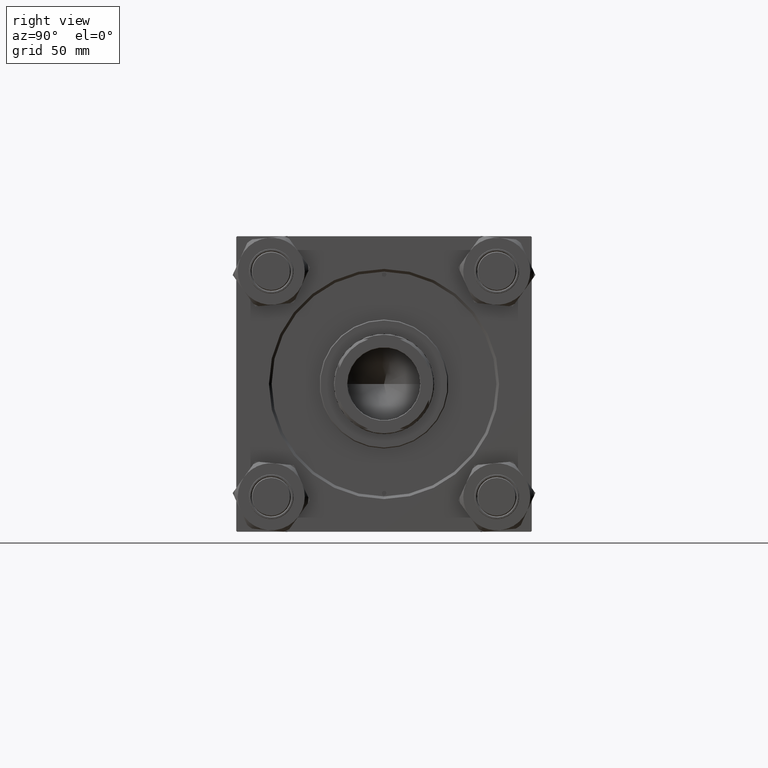
[diagram: clean part render]
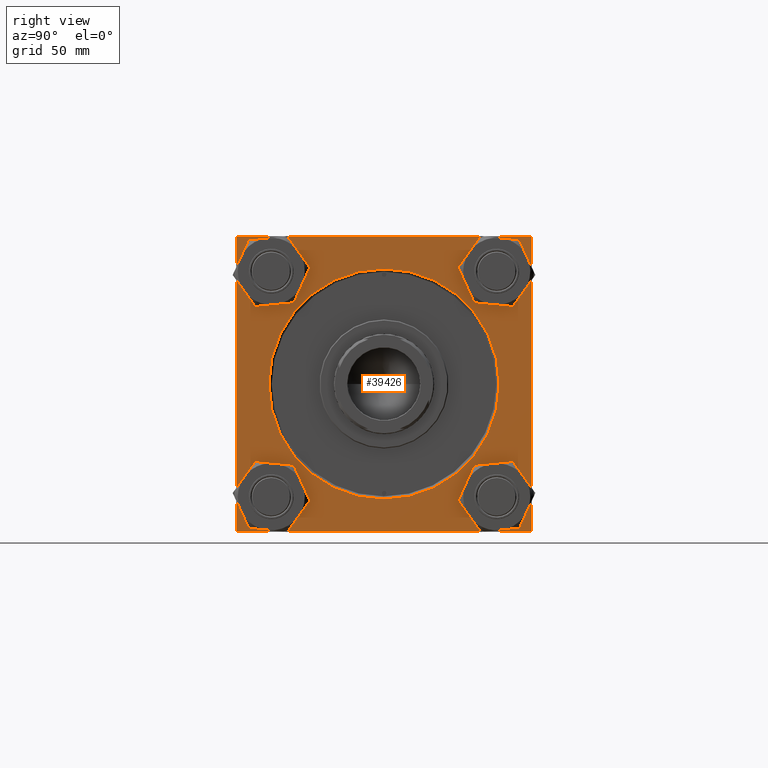
[diagram: same view with one face highlighted and labeled with its STEP entity id]
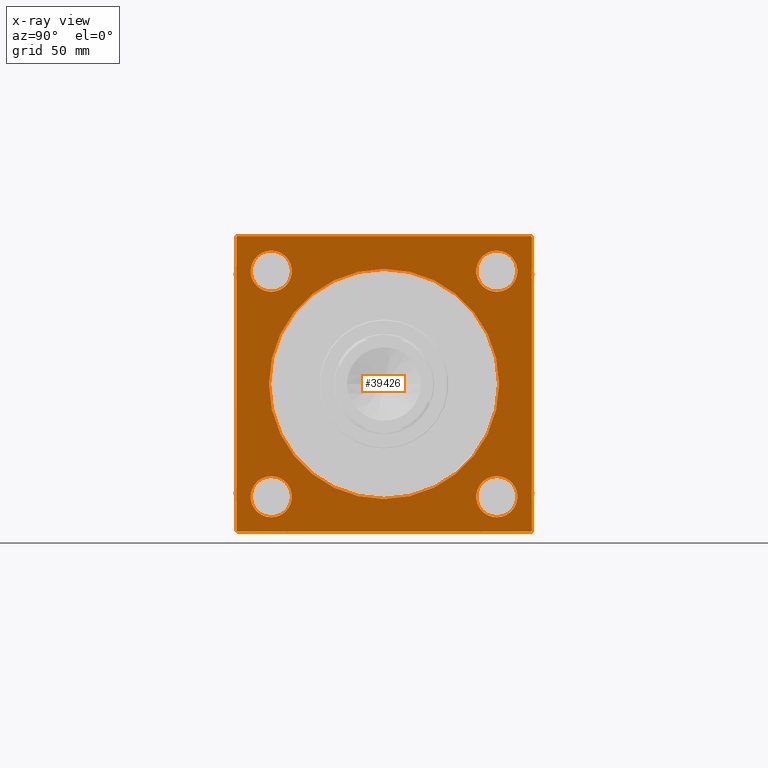
[diagram: x-ray of the same camera — body ghosted, the highlighted face saturated]
A machine part, right view. The second image highlights one B-rep face of the part: STEP entity #39426.
The next image is the same camera in x-ray: the body ghosted, the highlighted face saturated — about 0% of this face is hidden behind the body in this view.
In plain terms, the highlighted planar face has unit normal (-1, 0, 0).
Its self-contained STEP definition (entity closure, byte-faithful):
#248 = CARTESIAN_POINT ( 'NONE',  ( 217.0000000000000284, 82.50000000000001421, -82.00000000000005684 ) ) ;
#699 = CARTESIAN_POINT ( 'NONE',  ( 217.0000000000000284, -82.00000000000004263, -82.50000000000002842 ) ) ;
#807 = CIRCLE ( 'NONE', #40709, 64.24999999999997158 ) ;
#1118 = CIRCLE ( 'NONE', #8448, 11.49999999999995381 ) ;
#1198 = EDGE_CURVE ( 'NONE', #16869, #8510, #1429, .T. ) ;
#1429 = LINE ( 'NONE', #44530, #47943 ) ;
#2070 = CARTESIAN_POINT ( 'NONE',  ( 217.0000000000000284, -62.94999999999998153, -51.45000000000006679 ) ) ;
#2467 = DIRECTION ( 'NONE',  ( 0.000000000000000000, -1.000000000000000000, -1.682156097916904081E-16 ) ) ;
#2614 = VERTEX_POINT ( 'NONE', #9171 ) ;
#2688 = EDGE_CURVE ( 'NONE', #16869, #27064, #31886, .T. ) ;
#2982 = ORIENTED_EDGE ( 'NONE', *, *, #40405, .T. ) ;
#3163 = VERTEX_POINT ( 'NONE', #32822 ) ;
#3266 = VECTOR ( 'NONE', #46949, 1000.000000000000114 ) ;
#3548 = DIRECTION ( 'NONE',  ( 0.000000000000000000, 0.000000000000000000, 1.000000000000000000 ) ) ;
#3623 = VERTEX_POINT ( 'NONE', #7241 ) ;
#5255 = CARTESIAN_POINT ( 'NONE',  ( 217.0000000000000284, 82.50000000000001421, -82.00000000000005684 ) ) ;
#5269 = DIRECTION ( 'NONE',  ( 0.000000000000000000, -1.000000000000000000, 0.000000000000000000 ) ) ;
#5309 = CIRCLE ( 'NONE', #20747, 11.49999999999995381 ) ;
#5439 = DIRECTION ( 'NONE',  ( 0.000000000000000000, 0.000000000000000000, 1.000000000000000000 ) ) ;
#5677 = EDGE_CURVE ( 'NONE', #25008, #31239, #16361, .T. ) ;
#5747 = EDGE_CURVE ( 'NONE', #21102, #3163, #35938, .T. ) ;
#6404 = CARTESIAN_POINT ( 'NONE',  ( 217.0000000000000284, 62.95000000000000284, 74.44999999999996021 ) ) ;
#6475 = FACE_BOUND ( 'NONE', #10274, .T. ) ;
#7241 = CARTESIAN_POINT ( 'NONE',  ( 217.0000000000000284, -62.94999999999998153, -74.44999999999997442 ) ) ;
#8115 = EDGE_LOOP ( 'NONE', ( #16543, #45691 ) ) ;
#8448 = AXIS2_PLACEMENT_3D ( 'NONE', #12461, #28019, #43585 ) ;
#8510 = VERTEX_POINT ( 'NONE', #34720 ) ;
#9065 = AXIS2_PLACEMENT_3D ( 'NONE', #29689, #37585, #45508 ) ;
#9171 = CARTESIAN_POINT ( 'NONE',  ( 217.0000000000000284, 62.95000000000000284, -74.44999999999996021 ) ) ;
#9283 = DIRECTION ( 'NONE',  ( 0.000000000000000000, -1.682156097916903834E-16, -1.000000000000000000 ) ) ;
#9839 = VERTEX_POINT ( 'NONE', #27362 ) ;
#9935 = VECTOR ( 'NONE', #31831, 999.9999999999998863 ) ;
#10035 = VERTEX_POINT ( 'NONE', #39268 ) ;
#10208 = ORIENTED_EDGE ( 'NONE', *, *, #29591, .T. ) ;
#10274 = EDGE_LOOP ( 'NONE', ( #10382, #41018 ) ) ;
#10382 = ORIENTED_EDGE ( 'NONE', *, *, #12014, .T. ) ;
#11445 = DIRECTION ( 'NONE',  ( -1.000000000000000000, -0.000000000000000000, 0.000000000000000000 ) ) ;
#12014 = EDGE_CURVE ( 'NONE', #3623, #49532, #19042, .T. ) ;
#12211 = ORIENTED_EDGE ( 'NONE', *, *, #13244, .T. ) ;
#12461 = CARTESIAN_POINT ( 'NONE',  ( 217.0000000000000284, -62.94999999999998153, 62.95000000000001705 ) ) ;
#12669 = ORIENTED_EDGE ( 'NONE', *, *, #5677, .T. ) ;
#12737 = DIRECTION ( 'NONE',  ( 0.000000000000000000, 0.000000000000000000, 1.000000000000000000 ) ) ;
#13106 = LINE ( 'NONE', #28662, #50078 ) ;
#13244 = EDGE_CURVE ( 'NONE', #31239, #25008, #37847, .T. ) ;
#13809 = EDGE_CURVE ( 'NONE', #36748, #10035, #33097, .T. ) ;
#13822 = CARTESIAN_POINT ( 'NONE',  ( 217.0000000000000284, -82.49999999999997158, 81.99999999999991473 ) ) ;
#14129 = PLANE ( 'NONE',  #9065 ) ;
#14690 = ORIENTED_EDGE ( 'NONE', *, *, #2688, .T. ) ;
#14775 = CARTESIAN_POINT ( 'NONE',  ( 217.0000000000000284, 62.95000000000000284, -62.95000000000000284 ) ) ;
#15799 = EDGE_CURVE ( 'NONE', #2614, #29403, #19195, .T. ) ;
#16124 = EDGE_LOOP ( 'NONE', ( #23560, #32777 ) ) ;
#16361 = CIRCLE ( 'NONE', #44884, 11.49999999999995381 ) ;
#16515 = CARTESIAN_POINT ( 'NONE',  ( 217.0000000000000284, -62.94999999999998153, 62.95000000000001705 ) ) ;
#16543 = ORIENTED_EDGE ( 'NONE', *, *, #15799, .T. ) ;
#16869 = VERTEX_POINT ( 'NONE', #29531 ) ;
#17686 = ORIENTED_EDGE ( 'NONE', *, *, #28429, .T. ) ;
#17818 = EDGE_CURVE ( 'NONE', #49532, #3623, #5309, .T. ) ;
#18553 = EDGE_LOOP ( 'NONE', ( #12211, #12669 ) ) ;
#19042 = CIRCLE ( 'NONE', #47552, 11.49999999999995381 ) ;
#19171 = LINE ( 'NONE', #34752, #33323 ) ;
#19195 = CIRCLE ( 'NONE', #28966, 11.49999999999995381 ) ;
#20292 = EDGE_CURVE ( 'NONE', #36685, #23115, #42033, .T. ) ;
#20433 = AXIS2_PLACEMENT_3D ( 'NONE', #16515, #28264, #36170 ) ;
#20578 = CARTESIAN_POINT ( 'NONE',  ( 217.0000000000000284, -62.94999999999998153, -62.95000000000001705 ) ) ;
#20747 = AXIS2_PLACEMENT_3D ( 'NONE', #22929, #28478, #27291 ) ;
#21102 = VERTEX_POINT ( 'NONE', #30096 ) ;
#21313 = LINE ( 'NONE', #699, #9935 ) ;
#22617 = CARTESIAN_POINT ( 'NONE',  ( 217.0000000000000284, 62.95000000000000284, 51.45000000000005258 ) ) ;
#22929 = CARTESIAN_POINT ( 'NONE',  ( 217.0000000000000284, -62.94999999999998153, -62.95000000000001705 ) ) ;
#23013 = DIRECTION ( 'NONE',  ( 0.000000000000000000, 0.000000000000000000, -1.000000000000000000 ) ) ;
#23115 = VERTEX_POINT ( 'NONE', #44913 ) ;
#23415 = EDGE_CURVE ( 'NONE', #29403, #2614, #42143, .T. ) ;
#23560 = ORIENTED_EDGE ( 'NONE', *, *, #44910, .T. ) ;
#23745 = DIRECTION ( 'NONE',  ( -1.000000000000000000, -0.000000000000000000, 0.000000000000000000 ) ) ;
#24540 = DIRECTION ( 'NONE',  ( -1.000000000000000000, -0.000000000000000000, 0.000000000000000000 ) ) ;
#25008 = VERTEX_POINT ( 'NONE', #6404 ) ;
#25365 = VECTOR ( 'NONE', #23013, 1000.000000000000000 ) ;
#25423 = DIRECTION ( 'NONE',  ( 0.000000000000000000, 0.000000000000000000, 1.000000000000000000 ) ) ;
#25503 = CARTESIAN_POINT ( 'NONE',  ( 217.0000000000000284, 0.000000000000000000, 0.000000000000000000 ) ) ;
#25602 = FACE_BOUND ( 'NONE', #32641, .T. ) ;
#26726 = ORIENTED_EDGE ( 'NONE', *, *, #38722, .F. ) ;
#26862 = CARTESIAN_POINT ( 'NONE',  ( 217.0000000000000284, 82.50000000000001421, 82.50000000000000000 ) ) ;
#27019 = DIRECTION ( 'NONE',  ( 0.000000000000000000, 0.000000000000000000, 1.000000000000000000 ) ) ;
#27064 = VERTEX_POINT ( 'NONE', #5255 ) ;
#27291 = DIRECTION ( 'NONE',  ( 0.000000000000000000, 0.000000000000000000, 1.000000000000000000 ) ) ;
#27362 = CARTESIAN_POINT ( 'NONE',  ( 217.0000000000000284, 82.50000000000001421, 82.00000000000002842 ) ) ;
#27465 = ORIENTED_EDGE ( 'NONE', *, *, #1198, .F. ) ;
#28019 = DIRECTION ( 'NONE',  ( -1.000000000000000000, -0.000000000000000000, 0.000000000000000000 ) ) ;
#28264 = DIRECTION ( 'NONE',  ( -1.000000000000000000, -0.000000000000000000, 0.000000000000000000 ) ) ;
#28293 = DIRECTION ( 'NONE',  ( -1.000000000000000000, -0.000000000000000000, 0.000000000000000000 ) ) ;
#28429 = EDGE_CURVE ( 'NONE', #9839, #36748, #19171, .T. ) ;
#28478 = DIRECTION ( 'NONE',  ( -1.000000000000000000, -0.000000000000000000, 0.000000000000000000 ) ) ;
#28662 = CARTESIAN_POINT ( 'NONE',  ( 217.0000000000000284, -82.49999999999997158, 82.49999999999997158 ) ) ;
#28966 = AXIS2_PLACEMENT_3D ( 'NONE', #14775, #30345, #27019 ) ;
#29145 = CARTESIAN_POINT ( 'NONE',  ( 217.0000000000000284, 62.95000000000000284, 62.95000000000000284 ) ) ;
#29148 = CARTESIAN_POINT ( 'NONE',  ( 217.0000000000000284, 0.000000000000000000, -64.24999999999997158 ) ) ;
#29390 = DIRECTION ( 'NONE',  ( -0.000000000000000000, -0.7071067811865573427, -0.7071067811865376918 ) ) ;
#29403 = VERTEX_POINT ( 'NONE', #44970 ) ;
#29531 = CARTESIAN_POINT ( 'NONE',  ( 217.0000000000000284, 82.00000000000004263, -82.50000000000002842 ) ) ;
#29591 = EDGE_CURVE ( 'NONE', #23115, #36685, #807, .T. ) ;
#29689 = CARTESIAN_POINT ( 'NONE',  ( 217.0000000000000284, 0.000000000000000000, 0.000000000000000000 ) ) ;
#30096 = CARTESIAN_POINT ( 'NONE',  ( 217.0000000000000284, -62.94999999999998153, 74.44999999999997442 ) ) ;
#30187 = VERTEX_POINT ( 'NONE', #45600 ) ;
#30345 = DIRECTION ( 'NONE',  ( -1.000000000000000000, -0.000000000000000000, 0.000000000000000000 ) ) ;
#30347 = DIRECTION ( 'NONE',  ( 0.000000000000000000, 0.000000000000000000, 1.000000000000000000 ) ) ;
#30658 = CARTESIAN_POINT ( 'NONE',  ( 217.0000000000000284, 82.00000000000004263, 82.50000000000000000 ) ) ;
#31239 = VERTEX_POINT ( 'NONE', #22617 ) ;
#31831 = DIRECTION ( 'NONE',  ( 0.000000000000000000, 0.7071067811865376918, -0.7071067811865574537 ) ) ;
#31886 = LINE ( 'NONE', #248, #3266 ) ;
#32150 = VECTOR ( 'NONE', #2467, 1000.000000000000000 ) ;
#32641 = EDGE_LOOP ( 'NONE', ( #37686, #10208 ) ) ;
#32777 = ORIENTED_EDGE ( 'NONE', *, *, #5747, .T. ) ;
#32822 = CARTESIAN_POINT ( 'NONE',  ( 217.0000000000000284, -62.94999999999998153, 51.45000000000006679 ) ) ;
#33097 = LINE ( 'NONE', #37163, #32150 ) ;
#33323 = VECTOR ( 'NONE', #45224, 1000.000000000000114 ) ;
#33682 = EDGE_CURVE ( 'NONE', #10035, #30187, #48796, .T. ) ;
#33773 = FACE_BOUND ( 'NONE', #16124, .T. ) ;
#34720 = CARTESIAN_POINT ( 'NONE',  ( 217.0000000000000284, -82.00000000000004263, -82.50000000000002842 ) ) ;
#34752 = CARTESIAN_POINT ( 'NONE',  ( 217.0000000000000284, 82.00000000000004263, 82.50000000000000000 ) ) ;
#35938 = CIRCLE ( 'NONE', #20433, 11.49999999999995381 ) ;
#36170 = DIRECTION ( 'NONE',  ( 0.000000000000000000, 0.000000000000000000, 1.000000000000000000 ) ) ;
#36439 = ORIENTED_EDGE ( 'NONE', *, *, #13809, .T. ) ;
#36685 = VERTEX_POINT ( 'NONE', #29148 ) ;
#36748 = VERTEX_POINT ( 'NONE', #30658 ) ;
#37086 = FACE_BOUND ( 'NONE', #8115, .T. ) ;
#37122 = EDGE_LOOP ( 'NONE', ( #49950, #2982, #27465, #14690, #26726, #17686, #36439, #43290 ) ) ;
#37163 = CARTESIAN_POINT ( 'NONE',  ( 217.0000000000000284, 82.50000000000001421, 82.50000000000000000 ) ) ;
#37585 = DIRECTION ( 'NONE',  ( -1.000000000000000000, -0.000000000000000000, 0.000000000000000000 ) ) ;
#37686 = ORIENTED_EDGE ( 'NONE', *, *, #20292, .T. ) ;
#37842 = FACE_BOUND ( 'NONE', #18553, .T. ) ;
#37847 = CIRCLE ( 'NONE', #45170, 11.49999999999995381 ) ;
#37975 = CARTESIAN_POINT ( 'NONE',  ( 217.0000000000000284, -82.50000000000000000, -82.00000000000005684 ) ) ;
#38722 = EDGE_CURVE ( 'NONE', #9839, #27064, #46758, .T. ) ;
#38755 = AXIS2_PLACEMENT_3D ( 'NONE', #25503, #11445, #30347 ) ;
#39268 = CARTESIAN_POINT ( 'NONE',  ( 217.0000000000000284, -81.99999999999990052, 82.49999999999997158 ) ) ;
#39426 = ADVANCED_FACE ( 'NONE', ( #6475, #37086, #37842, #33773, #25602, #41930 ), #14129, .F. ) ;
#39695 = AXIS2_PLACEMENT_3D ( 'NONE', #40020, #28293, #12737 ) ;
#40020 = CARTESIAN_POINT ( 'NONE',  ( 217.0000000000000284, 62.95000000000000284, -62.95000000000000284 ) ) ;
#40405 = EDGE_CURVE ( 'NONE', #43819, #8510, #21313, .T. ) ;
#40709 = AXIS2_PLACEMENT_3D ( 'NONE', #43661, #23745, #48247 ) ;
#40728 = DIRECTION ( 'NONE',  ( -1.000000000000000000, -0.000000000000000000, 0.000000000000000000 ) ) ;
#41018 = ORIENTED_EDGE ( 'NONE', *, *, #17818, .T. ) ;
#41930 = FACE_OUTER_BOUND ( 'NONE', #37122, .T. ) ;
#42033 = CIRCLE ( 'NONE', #38755, 64.24999999999997158 ) ;
#42143 = CIRCLE ( 'NONE', #39695, 11.49999999999995381 ) ;
#42304 = DIRECTION ( 'NONE',  ( -1.000000000000000000, -0.000000000000000000, 0.000000000000000000 ) ) ;
#43290 = ORIENTED_EDGE ( 'NONE', *, *, #33682, .T. ) ;
#43585 = DIRECTION ( 'NONE',  ( 0.000000000000000000, 0.000000000000000000, 1.000000000000000000 ) ) ;
#43661 = CARTESIAN_POINT ( 'NONE',  ( 217.0000000000000284, 0.000000000000000000, 0.000000000000000000 ) ) ;
#43819 = VERTEX_POINT ( 'NONE', #37975 ) ;
#44530 = CARTESIAN_POINT ( 'NONE',  ( 217.0000000000000284, 82.50000000000001421, -82.50000000000002842 ) ) ;
#44884 = AXIS2_PLACEMENT_3D ( 'NONE', #46148, #42304, #3548 ) ;
#44910 = EDGE_CURVE ( 'NONE', #3163, #21102, #1118, .T. ) ;
#44913 = CARTESIAN_POINT ( 'NONE',  ( 217.0000000000000284, 7.868355684521741158E-15, 64.24999999999997158 ) ) ;
#44970 = CARTESIAN_POINT ( 'NONE',  ( 217.0000000000000284, 62.95000000000000284, -51.45000000000005258 ) ) ;
#45170 = AXIS2_PLACEMENT_3D ( 'NONE', #29145, #24540, #5439 ) ;
#45224 = DIRECTION ( 'NONE',  ( 0.000000000000000000, -0.7071067811865474617, 0.7071067811865474617 ) ) ;
#45508 = DIRECTION ( 'NONE',  ( 0.000000000000000000, 0.000000000000000000, 1.000000000000000000 ) ) ;
#45600 = CARTESIAN_POINT ( 'NONE',  ( 217.0000000000000284, -82.49999999999997158, 81.99999999999991473 ) ) ;
#45691 = ORIENTED_EDGE ( 'NONE', *, *, #23415, .T. ) ;
#46148 = CARTESIAN_POINT ( 'NONE',  ( 217.0000000000000284, 62.95000000000000284, 62.95000000000000284 ) ) ;
#46475 = VECTOR ( 'NONE', #29390, 1000.000000000000114 ) ;
#46758 = LINE ( 'NONE', #26862, #25365 ) ;
#46949 = DIRECTION ( 'NONE',  ( -0.000000000000000000, 0.7071067811865474617, 0.7071067811865474617 ) ) ;
#47174 = EDGE_CURVE ( 'NONE', #30187, #43819, #13106, .T. ) ;
#47552 = AXIS2_PLACEMENT_3D ( 'NONE', #20578, #40728, #25423 ) ;
#47943 = VECTOR ( 'NONE', #5269, 1000.000000000000000 ) ;
#48247 = DIRECTION ( 'NONE',  ( 0.000000000000000000, 0.000000000000000000, 1.000000000000000000 ) ) ;
#48796 = LINE ( 'NONE', #13822, #46475 ) ;
#49532 = VERTEX_POINT ( 'NONE', #2070 ) ;
#49950 = ORIENTED_EDGE ( 'NONE', *, *, #47174, .T. ) ;
#50078 = VECTOR ( 'NONE', #9283, 1000.000000000000000 ) ;